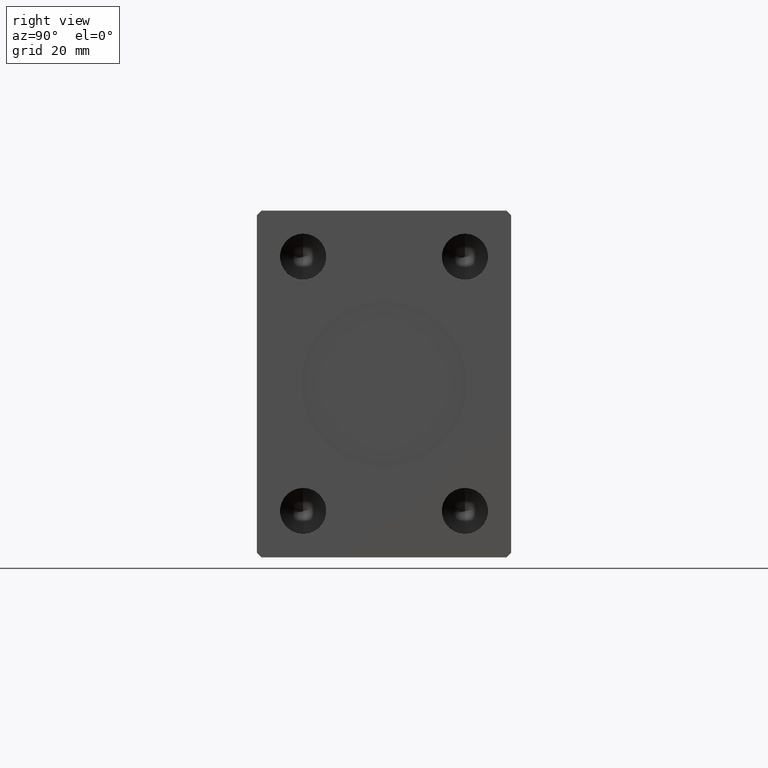
[diagram: clean part render]
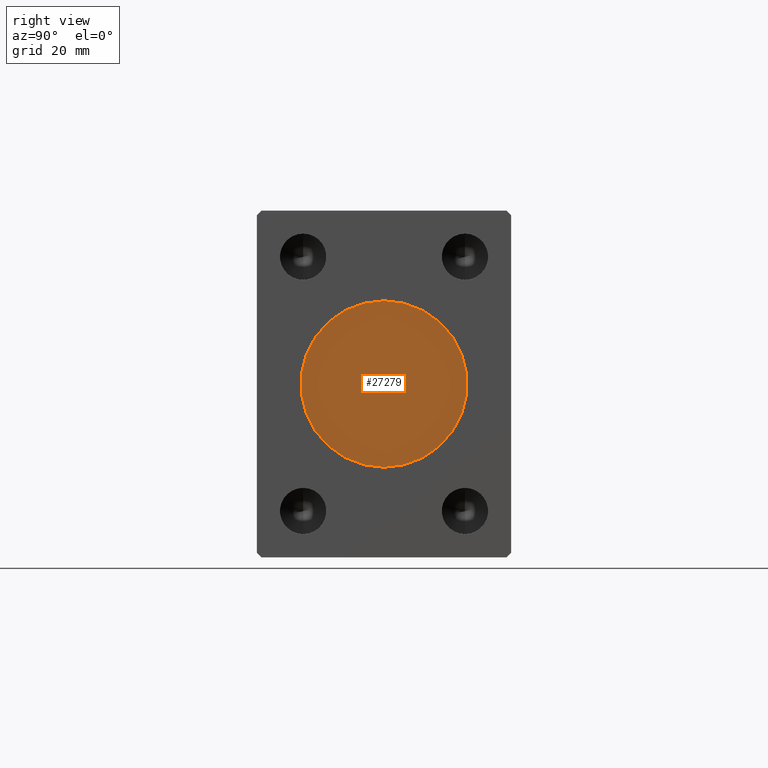
[diagram: same view with one face highlighted and labeled with its STEP entity id]
A machine part, right view. The second image highlights one B-rep face of the part: STEP entity #27279.
In plain terms, the highlighted planar face has unit normal (1, 0, 0).
Its self-contained STEP definition (entity closure, byte-faithful):
#582 = DIRECTION ( 'NONE',  ( 0.000000000000000000, 0.000000000000000000, -1.000000000000000000 ) ) ;
#4947 = CARTESIAN_POINT ( 'NONE',  ( 114.7999999999999972, 0.000000000000000000, 0.000000000000000000 ) ) ;
#6841 = DIRECTION ( 'NONE',  ( 1.000000000000000000, 0.000000000000000000, 0.000000000000000000 ) ) ;
#7562 = ORIENTED_EDGE ( 'NONE', *, *, #19532, .T. ) ;
#11077 = VERTEX_POINT ( 'NONE', #12387 ) ;
#12115 = DIRECTION ( 'NONE',  ( 0.000000000000000000, 0.000000000000000000, -1.000000000000000000 ) ) ;
#12369 = CARTESIAN_POINT ( 'NONE',  ( 114.7999999999999972, 0.000000000000000000, 0.000000000000000000 ) ) ;
#12387 = CARTESIAN_POINT ( 'NONE',  ( 114.7999999999999972, 2.204364238465235428E-15, 18.00000000000000000 ) ) ;
#15722 = PLANE ( 'NONE',  #29403 ) ;
#19532 = EDGE_CURVE ( 'NONE', #23522, #11077, #26305, .T. ) ;
#20485 = DIRECTION ( 'NONE',  ( 0.000000000000000000, 0.000000000000000000, -1.000000000000000000 ) ) ;
#23522 = VERTEX_POINT ( 'NONE', #25303 ) ;
#24381 = AXIS2_PLACEMENT_3D ( 'NONE', #37479, #6841, #20485 ) ;
#24643 = EDGE_LOOP ( 'NONE', ( #7562, #34093 ) ) ;
#25303 = CARTESIAN_POINT ( 'NONE',  ( 114.7999999999999972, 0.000000000000000000, -18.00000000000000000 ) ) ;
#26305 = CIRCLE ( 'NONE', #29890, 18.00000000000000000 ) ;
#27279 = ADVANCED_FACE ( 'NONE', ( #31194 ), #15722, .T. ) ;
#27955 = EDGE_CURVE ( 'NONE', #11077, #23522, #27966, .T. ) ;
#27966 = CIRCLE ( 'NONE', #24381, 18.00000000000000000 ) ;
#29403 = AXIS2_PLACEMENT_3D ( 'NONE', #12369, #38808, #582 ) ;
#29890 = AXIS2_PLACEMENT_3D ( 'NONE', #4947, #35799, #12115 ) ;
#31194 = FACE_OUTER_BOUND ( 'NONE', #24643, .T. ) ;
#34093 = ORIENTED_EDGE ( 'NONE', *, *, #27955, .T. ) ;
#35799 = DIRECTION ( 'NONE',  ( 1.000000000000000000, 0.000000000000000000, 0.000000000000000000 ) ) ;
#37479 = CARTESIAN_POINT ( 'NONE',  ( 114.7999999999999972, 0.000000000000000000, 0.000000000000000000 ) ) ;
#38808 = DIRECTION ( 'NONE',  ( 1.000000000000000000, 0.000000000000000000, 0.000000000000000000 ) ) ;